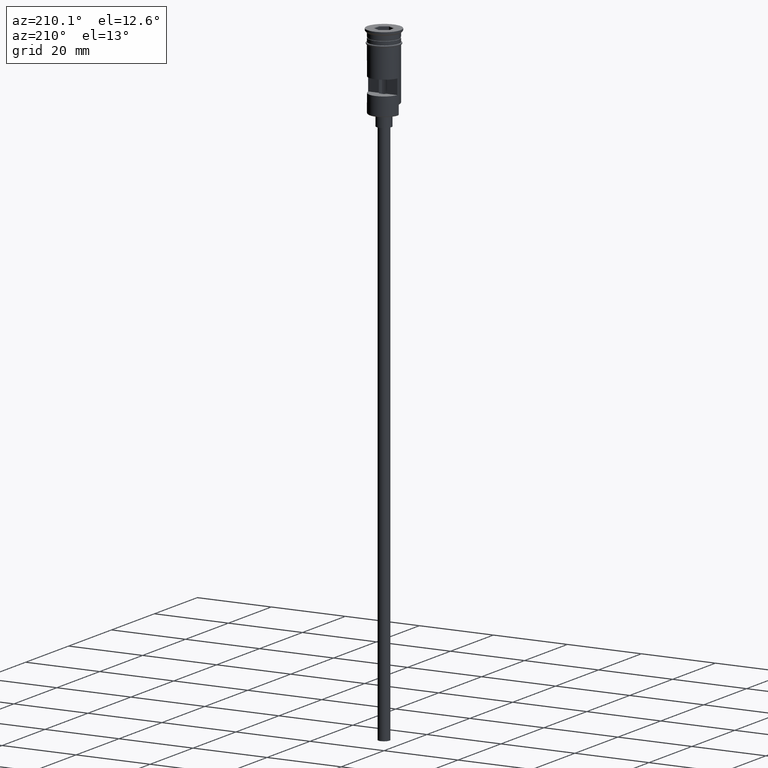
[diagram: clean part render]
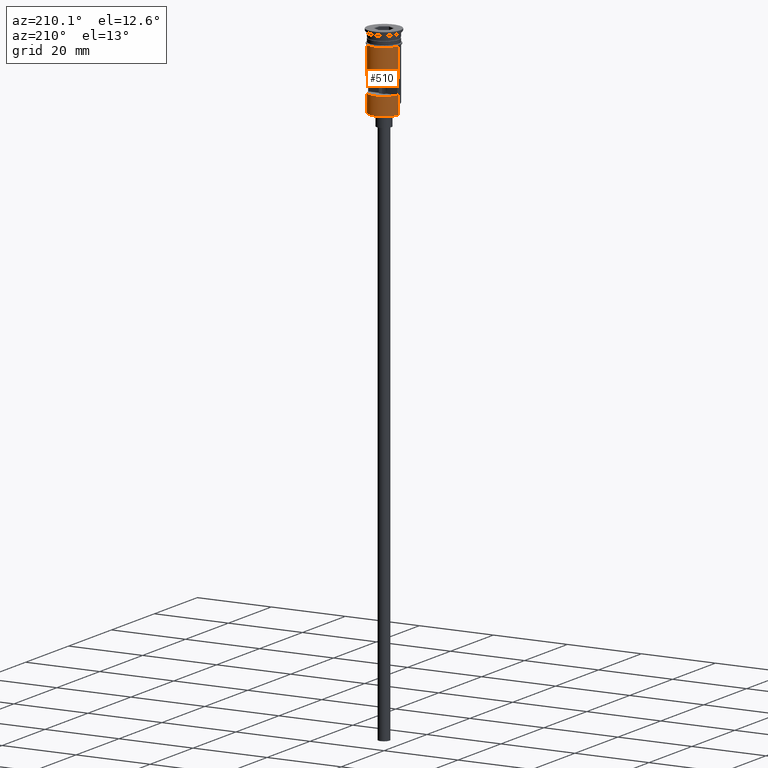
[diagram: same view with one face highlighted and labeled with its STEP entity id]
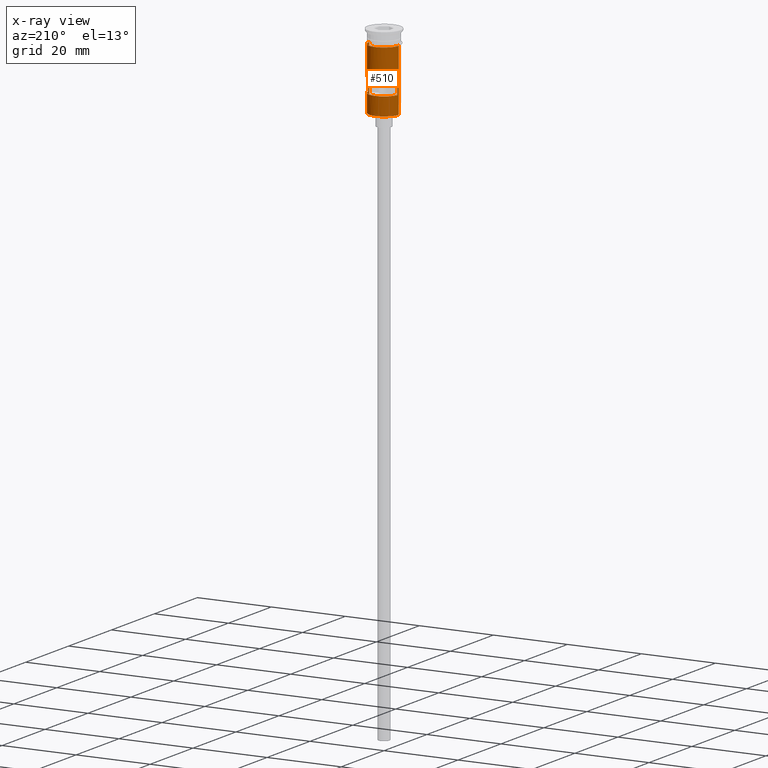
[diagram: x-ray of the same camera — body ghosted, the highlighted face saturated]
A machine part, auxiliary view. The second image highlights one B-rep face of the part: STEP entity #510.
The next image is the same camera in x-ray: the body ghosted, the highlighted face saturated — about 0% of this face is hidden behind the body in this view.
In plain terms, the highlighted cylindrical surface (edge-blend (fillet) strip) has radius 4 mm, axis along (-0, -0, 1).
Its self-contained STEP definition (entity closure, byte-faithful):
#5 = VECTOR ( 'NONE', #239, 1000.000000000000000 ) ;
#13 = LINE ( 'NONE', #515, #332 ) ;
#21 = CARTESIAN_POINT ( 'NONE',  ( -3.999999999999997335, 0.000000000000000000, -20.29999999999997584 ) ) ;
#25 = VERTEX_POINT ( 'NONE', #911 ) ;
#33 = DIRECTION ( 'NONE',  ( -0.000000000000000000, -0.000000000000000000, 1.000000000000000000 ) ) ;
#42 = LINE ( 'NONE', #629, #532 ) ;
#45 = FACE_BOUND ( 'NONE', #161, .T. ) ;
#49 = VERTEX_POINT ( 'NONE', #416 ) ;
#78 = DIRECTION ( 'NONE',  ( 1.000000000000000000, 0.000000000000000000, 0.000000000000000000 ) ) ;
#79 = VECTOR ( 'NONE', #349, 1000.000000000000000 ) ;
#101 = VERTEX_POINT ( 'NONE', #674 ) ;
#106 = AXIS2_PLACEMENT_3D ( 'NONE', #807, #176, #539 ) ;
#126 = CARTESIAN_POINT ( 'NONE',  ( 3.999999999999997335, 4.898587196589409870E-16, -20.29999999999997584 ) ) ;
#131 = CIRCLE ( 'NONE', #1035, 4.000000000000000000 ) ;
#134 = DIRECTION ( 'NONE',  ( 0.000000000000000000, 0.000000000000000000, -1.000000000000000000 ) ) ;
#135 = VECTOR ( 'NONE', #777, 1000.000000000000000 ) ;
#161 = EDGE_LOOP ( 'NONE', ( #943, #436, #1067, #175 ) ) ;
#175 = ORIENTED_EDGE ( 'NONE', *, *, #1155, .F. ) ;
#176 = DIRECTION ( 'NONE',  ( 0.000000000000000000, 0.000000000000000000, 1.000000000000000000 ) ) ;
#239 = DIRECTION ( 'NONE',  ( -0.000000000000000000, -0.000000000000000000, 1.000000000000000000 ) ) ;
#241 = VERTEX_POINT ( 'NONE', #21 ) ;
#263 = CIRCLE ( 'NONE', #284, 4.000000000000000000 ) ;
#265 = CARTESIAN_POINT ( 'NONE',  ( -3.954743986657037524, 0.5999999999999996447, -15.50000000000000000 ) ) ;
#284 = AXIS2_PLACEMENT_3D ( 'NONE', #1385, #1374, #1136 ) ;
#322 = CARTESIAN_POINT ( 'NONE',  ( 0.000000000000000000, 0.000000000000000000, -3.799999999999998490 ) ) ;
#332 = VECTOR ( 'NONE', #1024, 1000.000000000000000 ) ;
#344 = LINE ( 'NONE', #1453, #5 ) ;
#349 = DIRECTION ( 'NONE',  ( -0.000000000000000000, -0.000000000000000000, 1.000000000000000000 ) ) ;
#366 = VERTEX_POINT ( 'NONE', #265 ) ;
#416 = CARTESIAN_POINT ( 'NONE',  ( -3.999999999999997335, 0.000000000000000000, -17.79999999999998295 ) ) ;
#436 = ORIENTED_EDGE ( 'NONE', *, *, #1289, .F. ) ;
#439 = ORIENTED_EDGE ( 'NONE', *, *, #1483, .T. ) ;
#451 = AXIS2_PLACEMENT_3D ( 'NONE', #1321, #1437, #78 ) ;
#507 = CIRCLE ( 'NONE', #1326, 4.000000000000000000 ) ;
#510 = ADVANCED_FACE ( 'NONE', ( #45, #805 ), #525, .T. ) ;
#515 = CARTESIAN_POINT ( 'NONE',  ( 4.000000000000000000, 0.000000000000000000, 0.000000000000000000 ) ) ;
#525 = CYLINDRICAL_SURFACE ( 'NONE', #451, 4.000000000000000000 ) ;
#532 = VECTOR ( 'NONE', #134, 1000.000000000000000 ) ;
#539 = DIRECTION ( 'NONE',  ( -1.000000000000000000, 0.000000000000000000, 0.000000000000000000 ) ) ;
#612 = CIRCLE ( 'NONE', #106, 4.000000000000000000 ) ;
#629 = CARTESIAN_POINT ( 'NONE',  ( 3.954743986657037524, 0.5999999999999996447, 0.000000000000000000 ) ) ;
#646 = EDGE_CURVE ( 'NONE', #685, #759, #131, .T. ) ;
#674 = CARTESIAN_POINT ( 'NONE',  ( 3.954743986657038413, 0.5999999999999996447, -11.50000000000000000 ) ) ;
#685 = VERTEX_POINT ( 'NONE', #1479 ) ;
#716 = DIRECTION ( 'NONE',  ( -0.000000000000000000, -0.000000000000000000, 1.000000000000000000 ) ) ;
#737 = VERTEX_POINT ( 'NONE', #126 ) ;
#738 = ORIENTED_EDGE ( 'NONE', *, *, #1249, .T. ) ;
#759 = VERTEX_POINT ( 'NONE', #1012 ) ;
#777 = DIRECTION ( 'NONE',  ( -0.000000000000000000, -0.000000000000000000, 1.000000000000000000 ) ) ;
#805 = FACE_OUTER_BOUND ( 'NONE', #1120, .T. ) ;
#807 = CARTESIAN_POINT ( 'NONE',  ( 0.000000000000000000, 0.000000000000000000, -20.29999999999997584 ) ) ;
#820 = DIRECTION ( 'NONE',  ( 1.000000000000000000, 0.000000000000000000, 0.000000000000000000 ) ) ;
#858 = ORIENTED_EDGE ( 'NONE', *, *, #1418, .T. ) ;
#898 = CARTESIAN_POINT ( 'NONE',  ( -3.999999999999997335, 0.000000000000000000, -20.49999999999999645 ) ) ;
#911 = CARTESIAN_POINT ( 'NONE',  ( -3.954743986657037524, 0.5999999999999996447, -11.50000000000000000 ) ) ;
#918 = DIRECTION ( 'NONE',  ( -0.000000000000000000, 0.000000000000000000, -1.000000000000000000 ) ) ;
#921 = CARTESIAN_POINT ( 'NONE',  ( 3.999999999999997335, 4.898587196589409870E-16, -20.49999999999999645 ) ) ;
#932 = EDGE_CURVE ( 'NONE', #737, #1145, #1147, .T. ) ;
#943 = ORIENTED_EDGE ( 'NONE', *, *, #1208, .F. ) ;
#1012 = CARTESIAN_POINT ( 'NONE',  ( -4.000000000000000000, 4.898587196589412829E-16, -3.799999999999998490 ) ) ;
#1024 = DIRECTION ( 'NONE',  ( -0.000000000000000000, -0.000000000000000000, 1.000000000000000000 ) ) ;
#1035 = AXIS2_PLACEMENT_3D ( 'NONE', #322, #716, #820 ) ;
#1067 = ORIENTED_EDGE ( 'NONE', *, *, #1070, .F. ) ;
#1070 = EDGE_CURVE ( 'NONE', #366, #25, #344, .T. ) ;
#1073 = CARTESIAN_POINT ( 'NONE',  ( 0.000000000000000000, 0.000000000000000000, -11.50000000000000000 ) ) ;
#1086 = LINE ( 'NONE', #1205, #79 ) ;
#1120 = EDGE_LOOP ( 'NONE', ( #738, #439, #1177, #1266, #1166, #858 ) ) ;
#1136 = DIRECTION ( 'NONE',  ( -1.000000000000000000, 0.000000000000000000, 0.000000000000000000 ) ) ;
#1145 = VERTEX_POINT ( 'NONE', #1461 ) ;
#1147 = LINE ( 'NONE', #921, #1250 ) ;
#1155 = EDGE_CURVE ( 'NONE', #1415, #366, #263, .T. ) ;
#1166 = ORIENTED_EDGE ( 'NONE', *, *, #932, .F. ) ;
#1177 = ORIENTED_EDGE ( 'NONE', *, *, #646, .F. ) ;
#1205 = CARTESIAN_POINT ( 'NONE',  ( -4.000000000000000000, 4.898587196589412829E-16, 0.000000000000000000 ) ) ;
#1208 = EDGE_CURVE ( 'NONE', #101, #1415, #42, .T. ) ;
#1249 = EDGE_CURVE ( 'NONE', #241, #49, #1525, .T. ) ;
#1250 = VECTOR ( 'NONE', #33, 1000.000000000000000 ) ;
#1258 = EDGE_CURVE ( 'NONE', #1145, #685, #13, .T. ) ;
#1266 = ORIENTED_EDGE ( 'NONE', *, *, #1258, .F. ) ;
#1287 = DIRECTION ( 'NONE',  ( 1.000000000000000000, 0.000000000000000000, 0.000000000000000000 ) ) ;
#1289 = EDGE_CURVE ( 'NONE', #25, #101, #507, .T. ) ;
#1321 = CARTESIAN_POINT ( 'NONE',  ( 0.000000000000000000, 0.000000000000000000, 0.000000000000000000 ) ) ;
#1326 = AXIS2_PLACEMENT_3D ( 'NONE', #1073, #918, #1287 ) ;
#1374 = DIRECTION ( 'NONE',  ( 0.000000000000000000, 0.000000000000000000, 1.000000000000000000 ) ) ;
#1385 = CARTESIAN_POINT ( 'NONE',  ( 0.000000000000000000, 0.000000000000000000, -15.50000000000000000 ) ) ;
#1415 = VERTEX_POINT ( 'NONE', #1434 ) ;
#1418 = EDGE_CURVE ( 'NONE', #737, #241, #612, .T. ) ;
#1434 = CARTESIAN_POINT ( 'NONE',  ( 3.954743986657038413, 0.5999999999999996447, -15.50000000000000000 ) ) ;
#1437 = DIRECTION ( 'NONE',  ( -0.000000000000000000, -0.000000000000000000, 1.000000000000000000 ) ) ;
#1453 = CARTESIAN_POINT ( 'NONE',  ( -3.954743986657037524, 0.5999999999999996447, 0.000000000000000000 ) ) ;
#1461 = CARTESIAN_POINT ( 'NONE',  ( 4.000000000000000000, 4.898587196589412829E-16, -17.79999999999998295 ) ) ;
#1479 = CARTESIAN_POINT ( 'NONE',  ( 4.000000000000000000, 0.000000000000000000, -3.799999999999998490 ) ) ;
#1483 = EDGE_CURVE ( 'NONE', #49, #759, #1086, .T. ) ;
#1525 = LINE ( 'NONE', #898, #135 ) ;